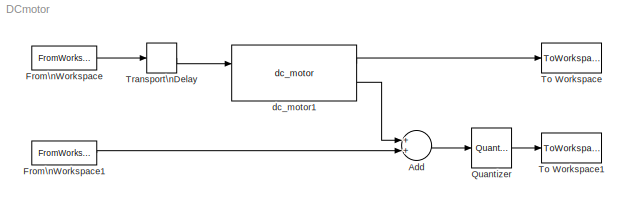
MODEL DCmotor
KIND model
BLOCK [Sum] Add
  InputSameDT = off
  OutDataType = fixdt(1, 16)
  OutDataTypeMode = Inherit via internal rule
  OutDataTypeStr = Inherit: Inherit via internal rule
  OutScaling = 2^-10
  Ports = [2, 1]
  SaturateOnIntegerOverflow = off
BLOCK [FromWorkspace] From\nWorkspace
  Interpolate = off
  OutputAfterFinalValue = Holding final value
  SampleTime = Ts
  VariableName = u_sim
  ZeroCross = on
BLOCK [FromWorkspace] From\nWorkspace1
  Interpolate = off
  OutputAfterFinalValue = Holding final value
  SampleTime = Ts
  VariableName = noise
  ZeroCross = on
BLOCK [Quantizer] Quantizer
  LinearizeAsGain = off
  QuantizationInterval = deg2rad(1)
BLOCK [ToWorkspace] To Workspace
  MaxDataPoints = inf
  SampleTime = Ts
  SaveFormat = Structure
  VariableName = dth
BLOCK [ToWorkspace] To Workspace1
  MaxDataPoints = inf
  SampleTime = Ts
  SaveFormat = Structure
  VariableName = th
BLOCK [TransportDelay] Transport\nDelay
  DelayTime = Ts
BLOCK [Reference] dc_motor1  REF=dc_motor_lib/dc_motor  (lib defined in mdl_47a98f9b099e)
  FunctionWithSeparateData = off
  Jm = I
  Kb = Kb
  Kt = Kt
  Lm = 0.000238
  Ports = [2, 2]
  RTWMemSecDataConstants = Inherit from model
  RTWMemSecDataInternal = Inherit from model
  RTWMemSecDataParameters = Inherit from model
  RTWMemSecFuncExecute = Inherit from model
  RTWMemSecFuncInitTerm = Inherit from model
  Rm = Ra
  ShowPortLabels = FromPortIcon
  SourceBlock = dc_motor_lib/dc_motor
  SystemSampleTime = -1
  bm = Bm
LINE Add:1 -> Quantizer:1
LINE From\nWorkspace1:1 -> Add:2
LINE From\nWorkspace:1 -> Transport\nDelay:1
LINE Quantizer:1 -> To Workspace1:1
LINE Transport\nDelay:1 -> dc_motor1:1
LINE dc_motor1:1 -> To Workspace:1
LINE dc_motor1:2 -> Add:1
